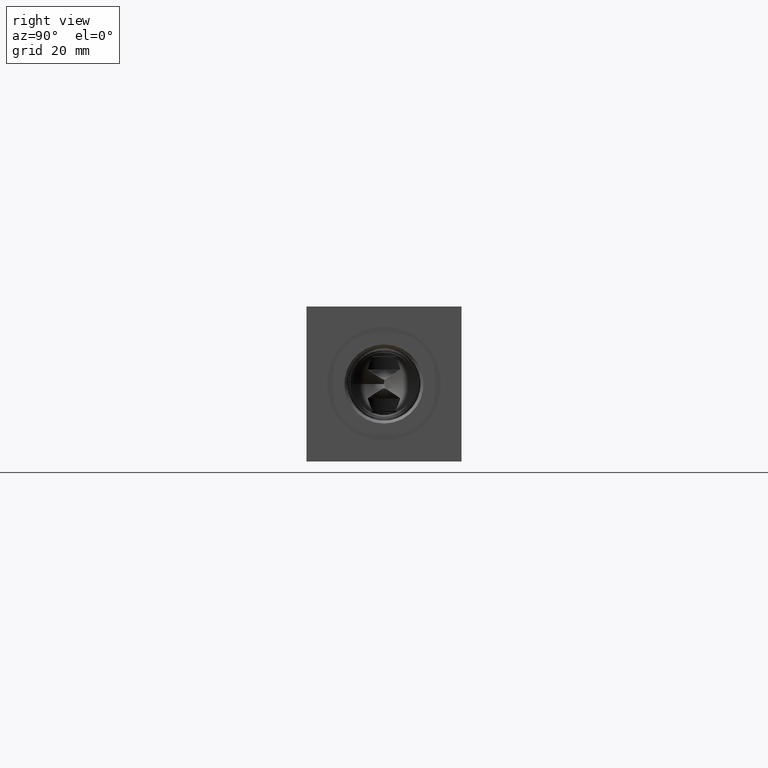
[diagram: clean part render]
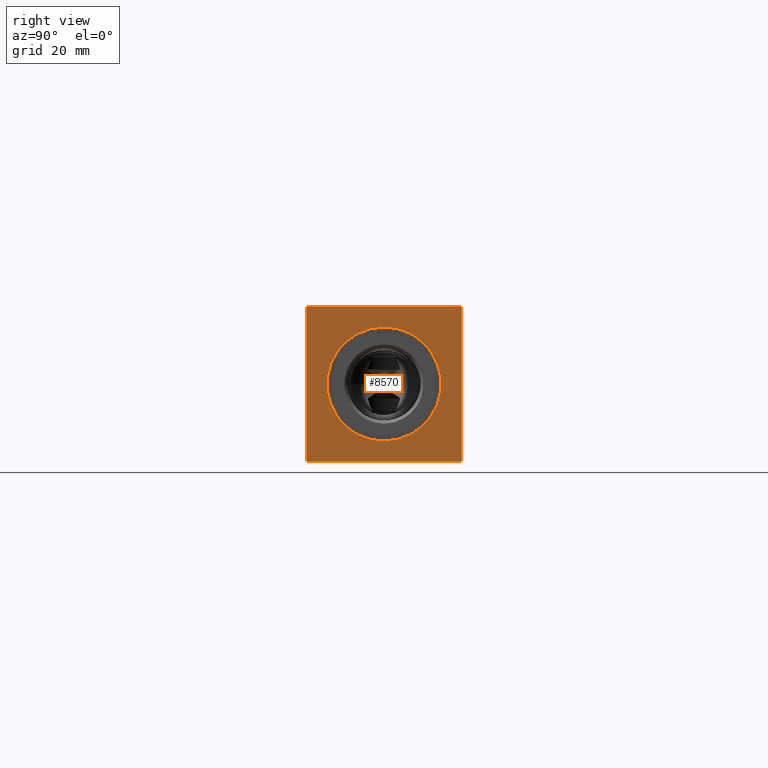
[diagram: same view with one face highlighted and labeled with its STEP entity id]
A machine part, right view. The second image highlights one B-rep face of the part: STEP entity #8570.
In plain terms, the highlighted planar face has unit normal (1, 0, 0).
Its self-contained STEP definition (entity closure, byte-faithful):
#294=CIRCLE('',#9089,21.0185);
#295=CIRCLE('',#9090,21.0185);
#381=FACE_BOUND('',#1563,.T.);
#627=PLANE('',#9133);
#1065=FACE_OUTER_BOUND('',#1562,.T.);
#1562=EDGE_LOOP('',(#7702,#7703,#7704,#7705));
#1563=EDGE_LOOP('',(#7706,#7707));
#1853=LINE('',#13110,#2609);
#2327=LINE('',#14982,#3083);
#2328=LINE('',#14985,#3084);
#2329=LINE('',#14986,#3085);
#2609=VECTOR('',#9563,10.);
#3083=VECTOR('',#10981,10.);
#3084=VECTOR('',#10984,10.);
#3085=VECTOR('',#10985,10.);
#3628=VERTEX_POINT('',#13107);
#3629=VERTEX_POINT('',#13109);
#4101=VERTEX_POINT('',#14891);
#4102=VERTEX_POINT('',#14892);
#4131=VERTEX_POINT('',#14980);
#4132=VERTEX_POINT('',#14984);
#4593=EDGE_CURVE('',#3628,#3629,#1853,.T.);
#5285=EDGE_CURVE('',#4101,#4102,#294,.T.);
#5286=EDGE_CURVE('',#4102,#4101,#295,.T.);
#5329=EDGE_CURVE('',#4131,#3629,#2327,.T.);
#5330=EDGE_CURVE('',#4132,#4131,#2328,.T.);
#5331=EDGE_CURVE('',#4132,#3628,#2329,.T.);
#7702=ORIENTED_EDGE('',*,*,#5330,.T.);
#7703=ORIENTED_EDGE('',*,*,#5329,.T.);
#7704=ORIENTED_EDGE('',*,*,#4593,.F.);
#7705=ORIENTED_EDGE('',*,*,#5331,.F.);
#7706=ORIENTED_EDGE('',*,*,#5285,.T.);
#7707=ORIENTED_EDGE('',*,*,#5286,.T.);
#8570=ADVANCED_FACE('',(#1065,#381),#627,.T.);
#9089=AXIS2_PLACEMENT_3D('',#14893,#10877,#10878);
#9090=AXIS2_PLACEMENT_3D('',#14894,#10879,#10880);
#9133=AXIS2_PLACEMENT_3D('',#14983,#10982,#10983);
#9563=DIRECTION('',(0.,1.,0.));
#10877=DIRECTION('center_axis',(-1.,0.,0.));
#10878=DIRECTION('ref_axis',(0.,0.,-1.));
#10879=DIRECTION('center_axis',(-1.,0.,0.));
#10880=DIRECTION('ref_axis',(0.,0.,-1.));
#10981=DIRECTION('',(0.,0.,1.));
#10982=DIRECTION('center_axis',(1.,0.,0.));
#10983=DIRECTION('ref_axis',(0.,1.,0.));
#10984=DIRECTION('',(0.,1.,0.));
#10985=DIRECTION('',(0.,0.,1.));
#13107=CARTESIAN_POINT('',(257.175,0.,57.15));
#13109=CARTESIAN_POINT('',(257.175,57.15,57.15));
#13110=CARTESIAN_POINT('',(257.175,0.,57.15));
#14891=CARTESIAN_POINT('',(257.175,28.575,7.5565));
#14892=CARTESIAN_POINT('',(257.175,28.575,49.5935));
#14893=CARTESIAN_POINT('Origin',(257.175,28.575,28.575));
#14894=CARTESIAN_POINT('Origin',(257.175,28.575,28.575));
#14980=CARTESIAN_POINT('',(257.175,57.15,0.));
#14982=CARTESIAN_POINT('',(257.175,57.15,0.));
#14983=CARTESIAN_POINT('Origin',(257.175,0.,0.));
#14984=CARTESIAN_POINT('',(257.175,0.,0.));
#14985=CARTESIAN_POINT('',(257.175,0.,0.));
#14986=CARTESIAN_POINT('',(257.175,0.,0.));